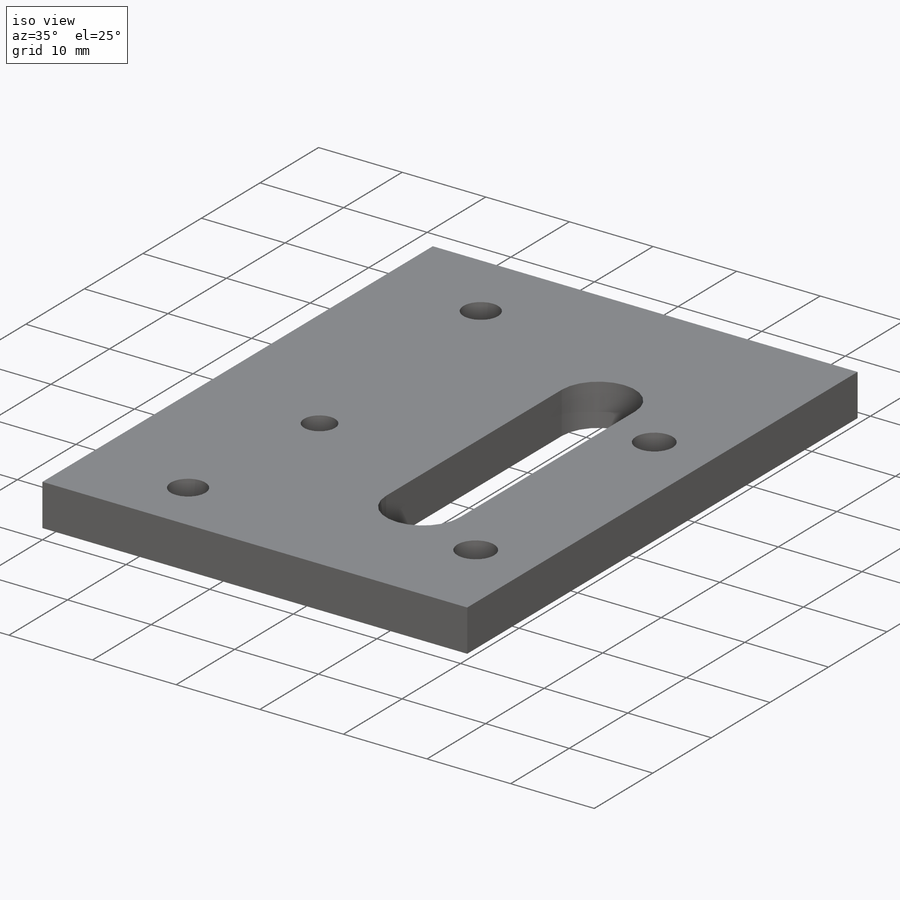
[diagram: iso view]
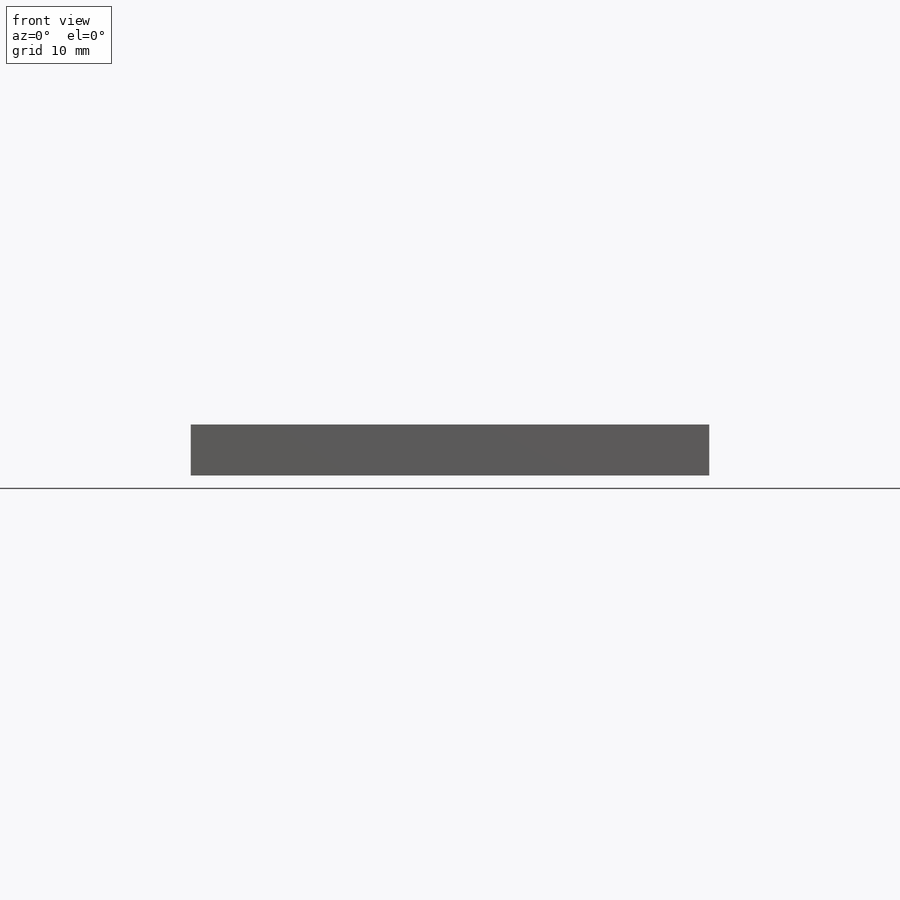
[diagram: front view]
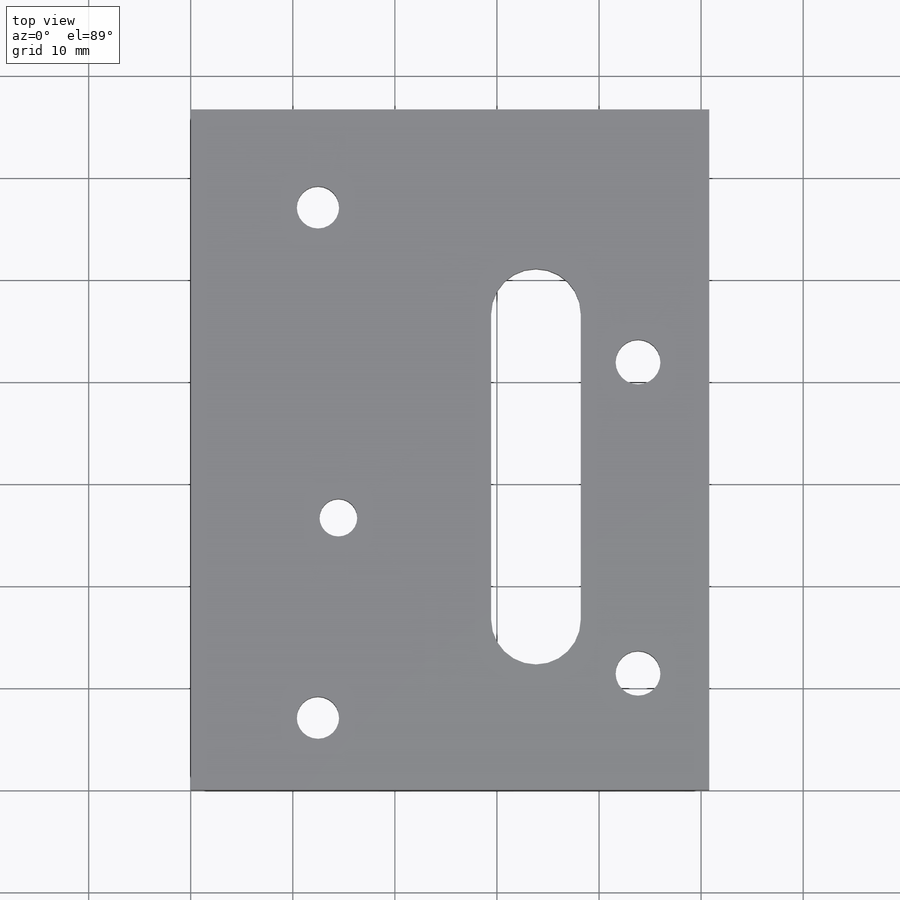
[diagram: top view]
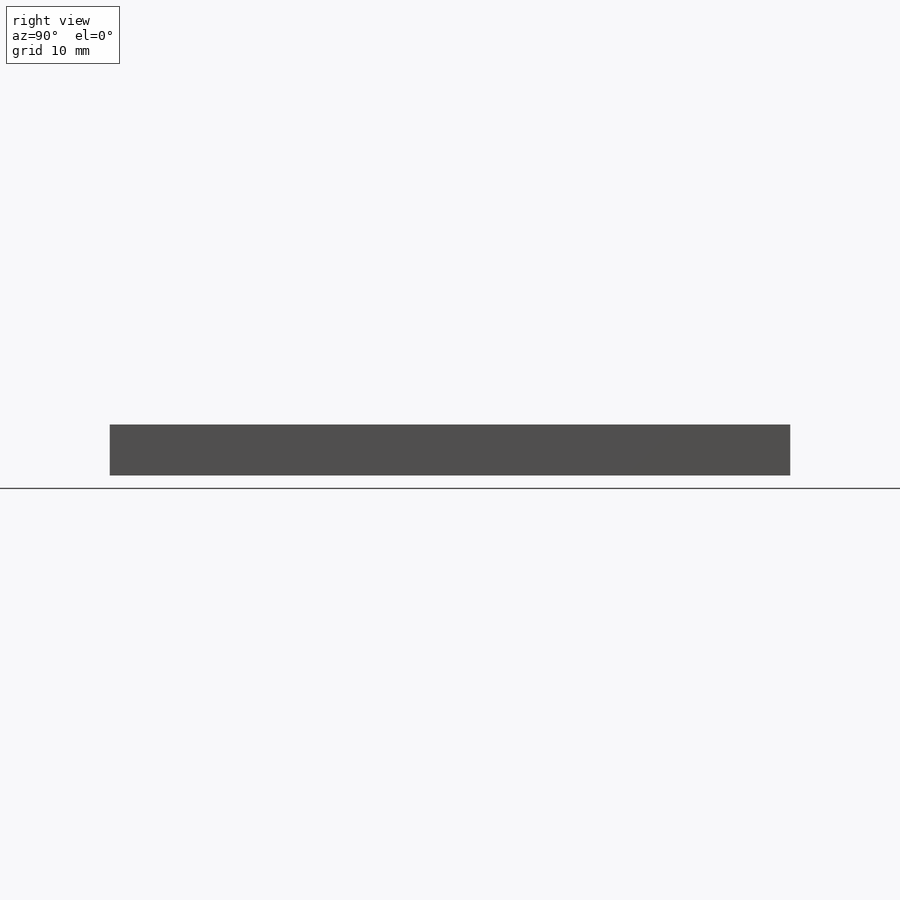
[diagram: right view]
SOLIDWORKS PART (.sldprt)
format: sldprt  version: not decoded by parser v0  size: 206,848 bytes
history: native  units: mm
features: sketch x4, cut_extrude x3, material x1, extrude x1 (+11 scaffold rows collapsed)
feature tree (20):
  scaffold x11  (default folders/planes/origin — collapsed)
  material  "Material <not specified>"
  sketch  "Sketch1"  dims[D1=50.8mm D2=66.675mm]
  extrude  "Boss-Extrude1"  Depth=5mm
  sketch  "Sketch2"  dims[c1.D1=4.15mm c1.D3=4.15mm c1.D4=4.15mm c1.D5=4.15mm c1.D6=4.15mm c1.D7=4.15mm c1.D8=4.15mm c1.D9=4.15mm c1.D10=4.15mm c1.D11=3.7mm c1.D12=3.7mm c1.D13=4.15mm c1.D14=4.15mm c1.D15=4.15mm c1.D16=4.15mm c1.D17=4.15mm c1.D2=12.465mm c2.D3=9.6mm c2.D5=60.8mm c2.D6=62.7mm c2.D9=62.7mm c2.D10=10.8mm c2.D13=60.7mm c2.D14=30.4mm c2.D15=50.0mm c2.D16=2.0mm c2.D17=30.4mm c2.D18=19.6mm c2.D4=50.0mm]
  cut_extrude  "Cut-Extrude1"  [1 undecoded]
  sketch  "Sketch3"  dims[c1.D1=4.4mm c1.D2=4.4mm c1.D4=4.4mm c1.D6=4.4mm c1.D3=25.47mm c2.D4=25.47mm c2.D3=25.47mm c3.D4=25.47mm c3.D5=20.0mm c3.D3=24.75mm c4.D4=24.75mm c4.D5=43.82mm c4.D6=43.82mm c5.D4=30.5mm]
  cut_extrude  "Cut-Extrude2"  [1 undecoded]
  sketch  "Sketch4"  dims[c1.D1=4.4mm c1.D2=4.15mm c1.D3=4.15mm c1.D5=3.0mm c2.D1=10.0mm c2.D2=25.0mm c2.D3=87.63mm c2.D4=5.4mm c3.D2=20.0mm c3.D4=20.0mm c3.D5=0.0mm c4.D2=30.0mm c4.D3=30.0mm]
  cut_extrude  "Cut-Extrude3"  [1 undecoded]
decode coverage: 5 of 8 modeling features carry decoded parameters
note: 3 parameter values undecoded
summary: no parameter record found for 3 features
note: suppression state not decoded; provenance and decode notes live in map.json
